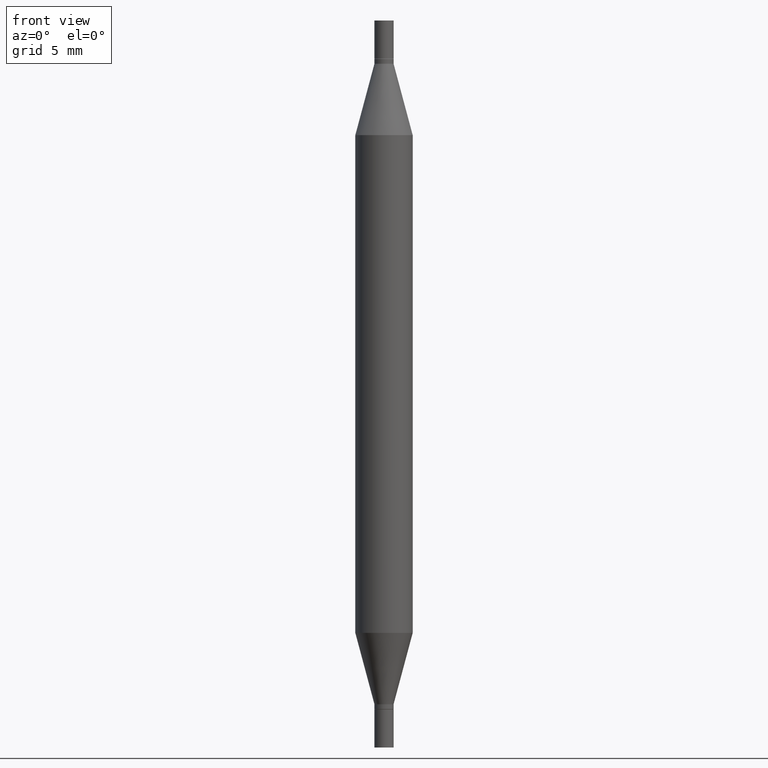
[diagram: clean part render]
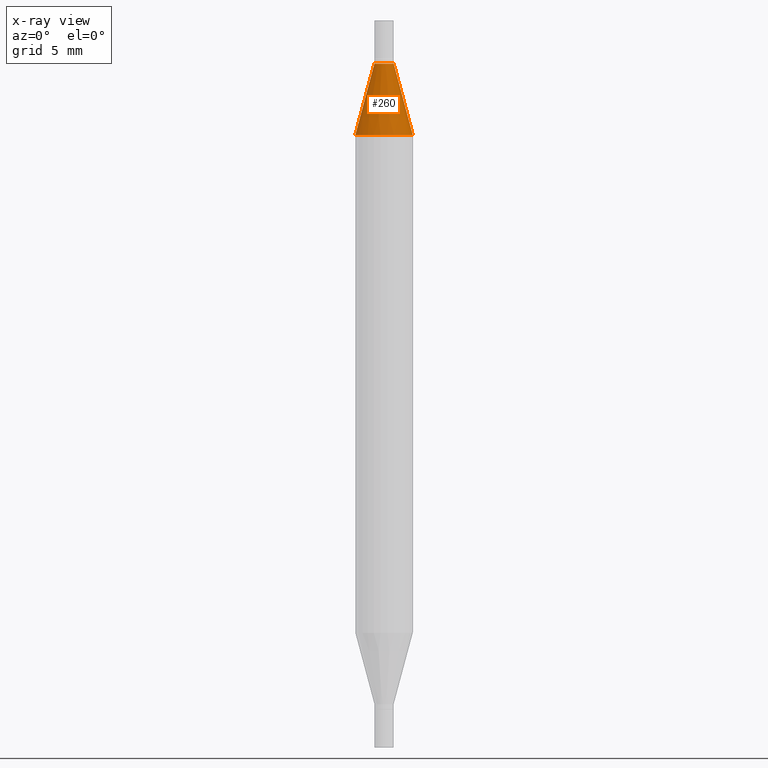
[diagram: x-ray — body ghosted, one internal face saturated and labeled with its STEP entity id]
A machine part, front view, then the same camera in x-ray: the body is ghosted and one INTERNAL B-rep face — a face not visible from any outside direction — is saturated and labeled: STEP entity #260.
In plain terms, the highlighted conical surface has half-angle 15 deg.
Its self-contained STEP definition (entity closure, byte-faithful):
#61 = DIRECTION ( 'NONE',  ( 2.445468806185136597E-29, 3.491805094961124077E-15, 1.000000000000000000 ) ) ;
#111 = EDGE_LOOP ( 'NONE', ( #709, #689, #762, #662 ) ) ;
#127 = CIRCLE ( 'NONE', #816, 0.01969999999999975937 ) ;
#129 = AXIS2_PLACEMENT_3D ( 'NONE', #534, #842, #169 ) ;
#138 = CARTESIAN_POINT ( 'NONE',  ( -0.01969999999999975937, -1.582668121660786430E-16, -0.08900000000000006517 ) ) ;
#156 = EDGE_CURVE ( 'NONE', #685, #282, #127, .T. ) ;
#163 = DIRECTION ( 'NONE',  ( 0.2588190451025216277, -5.180148453816008779E-15, -0.9659258262890679791 ) ) ;
#169 = DIRECTION ( 'NONE',  ( 1.000000000000000000, -6.982962677686265922E-15, 0.000000000000000000 ) ) ;
#188 = EDGE_CURVE ( 'NONE', #282, #279, #758, .T. ) ;
#214 = DIRECTION ( 'NONE',  ( -0.2588190451025216277, -1.597197180879712157E-15, -0.9659258262890679791 ) ) ;
#228 = CARTESIAN_POINT ( 'NONE',  ( 0.01969999999999975937, -4.480928324379030713E-16, -0.08900000000000006517 ) ) ;
#232 = EDGE_CURVE ( 'NONE', #573, #279, #250, .T. ) ;
#250 = CIRCLE ( 'NONE', #861, 0.05905000000000001914 ) ;
#260 = ADVANCED_FACE ( 'NONE', ( #928 ), #272, .T. ) ;
#263 = CARTESIAN_POINT ( 'NONE',  ( 0.05905000000000001914, -1.235665638669832421E-15, -0.2358561992778358263 ) ) ;
#272 = CONICAL_SURFACE ( 'NONE', #129, 0.01969999999999975937, 0.2617993877991502960 ) ;
#279 = VERTEX_POINT ( 'NONE', #263 ) ;
#282 = VERTEX_POINT ( 'NONE', #643 ) ;
#293 = DIRECTION ( 'NONE',  ( 1.000000000000000000, -6.982962677686265922E-15, 0.000000000000000000 ) ) ;
#341 = VECTOR ( 'NONE', #214, 39.37007874015748143 ) ;
#446 = EDGE_CURVE ( 'NONE', #685, #573, #890, .T. ) ;
#534 = CARTESIAN_POINT ( 'NONE',  ( 3.441019157183105205E-29, -3.105284676874853360E-16, -0.08900000000000006517 ) ) ;
#573 = VERTEX_POINT ( 'NONE', #939 ) ;
#643 = CARTESIAN_POINT ( 'NONE',  ( 0.01969999999999975937, -4.480928324379030713E-16, -0.08900000000000006517 ) ) ;
#662 = ORIENTED_EDGE ( 'NONE', *, *, #188, .F. ) ;
#685 = VERTEX_POINT ( 'NONE', #138 ) ;
#689 = ORIENTED_EDGE ( 'NONE', *, *, #446, .T. ) ;
#700 = VECTOR ( 'NONE', #163, 39.37007874015748143 ) ;
#709 = ORIENTED_EDGE ( 'NONE', *, *, #156, .F. ) ;
#758 = LINE ( 'NONE', #228, #700 ) ;
#760 = DIRECTION ( 'NONE',  ( 1.000000000000000000, -6.982962677686266711E-15, 0.000000000000000000 ) ) ;
#762 = ORIENTED_EDGE ( 'NONE', *, *, #232, .T. ) ;
#769 = DIRECTION ( 'NONE',  ( 2.445468806185136597E-29, 3.491805094961124077E-15, 1.000000000000000000 ) ) ;
#806 = CARTESIAN_POINT ( 'NONE',  ( 3.441019157183105205E-29, -3.105284676874853360E-16, -0.08900000000000006517 ) ) ;
#815 = CARTESIAN_POINT ( 'NONE',  ( -0.01969999999999975937, -1.753766571313877937E-16, -0.08900000000000006517 ) ) ;
#816 = AXIS2_PLACEMENT_3D ( 'NONE', #806, #61, #293 ) ;
#842 = DIRECTION ( 'NONE',  ( -2.445468806185136597E-29, -3.491805094961124077E-15, -1.000000000000000000 ) ) ;
#861 = AXIS2_PLACEMENT_3D ( 'NONE', #914, #769, #760 ) ;
#890 = LINE ( 'NONE', #815, #341 ) ;
#914 = CARTESIAN_POINT ( 'NONE',  ( 3.081886902854249834E-29, -8.233216925524582901E-16, -0.2358561992778358263 ) ) ;
#928 = FACE_OUTER_BOUND ( 'NONE', #111, .T. ) ;
#939 = CARTESIAN_POINT ( 'NONE',  ( -0.05905000000000001914, -4.182092857840493725E-16, -0.2358561992778358263 ) ) ;